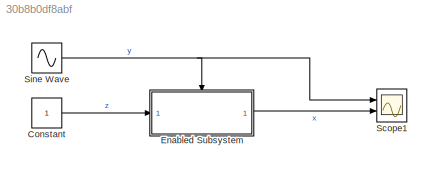
MODEL slx_30b8b0df8abf
KIND model
CONFIG AbsTol = auto
CONFIG EnableMultiTasking = off
CONFIG FixedStep = auto
CONFIG MaxStep = auto
CONFIG MinStep = auto
CONFIG RelTol = 1e-3
CONFIG SampleTimeConstraint = Unconstrained
CONFIG Solver = VariableStepAuto
CONFIG SolverName = VariableStepAuto
CONFIG StartTime = 0.0
CONFIG StopTime = 20
BLOCK [Constant] Constant
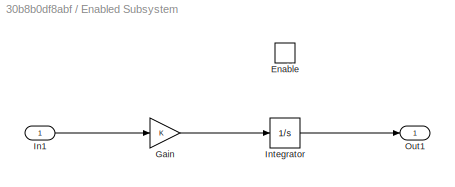
BLOCK [SubSystem] Enabled Subsystem
  Ports = [1, 1, 1]
  RequestExecContextInheritance = off
  TreatAsAtomicUnit = on
BLOCK [EnablePort] Enabled Subsystem/Enable
  Ports = []
BLOCK [Gain] Enabled Subsystem/Gain
  SampleTime = 2
BLOCK [Inport] Enabled Subsystem/In1
BLOCK [Integrator] Enabled Subsystem/Integrator
  Ports = [1, 1]
BLOCK [Outport] Enabled Subsystem/Out1
  VectorParamsAs1DForOutWhenUnconnected = off
BLOCK [Scope] Scope1
  Floating = off
  NumInputPorts = 2
  Ports = [2]
  ScopeSpecificationString = Simulink.scopes.TimeScopeBlockCfg('CurrentConfiguration', extmgr.ConfigurationSet(extmgr.Configuration('Core','General UI',true),extmgr.Configuration('Core','Source UI',true),extmgr.Configuration('Sources','WiredSimulink',true,'DataLoggingVariableName','ScopeData1'),extmgr.Configuration('Visuals','Time Domain',true,'SerializedDisplays',{struct('MinYLimReal','-1.24996','MaxYLimReal','1.24972','YLab...<+2020ch>
BLOCK [Sin] Sine Wave
  Ports = [0, 1]
  SampleTime = 0
LINE Constant:1 -> Enabled Subsystem:1
LINE Enabled Subsystem/Gain:1 -> Enabled Subsystem/Integrator:1
LINE Enabled Subsystem/In1:1 -> Enabled Subsystem/Gain:1
LINE Enabled Subsystem/Integrator:1 -> Enabled Subsystem/Out1:1
LINE Enabled Subsystem:1 -> Scope1:2
NET Sine Wave:1 -> Enabled Subsystem:enable, Scope1:1
note: NET lines group one-source signal fan-out (src -> all destinations, sorted); 1:1 wires keep LINE
